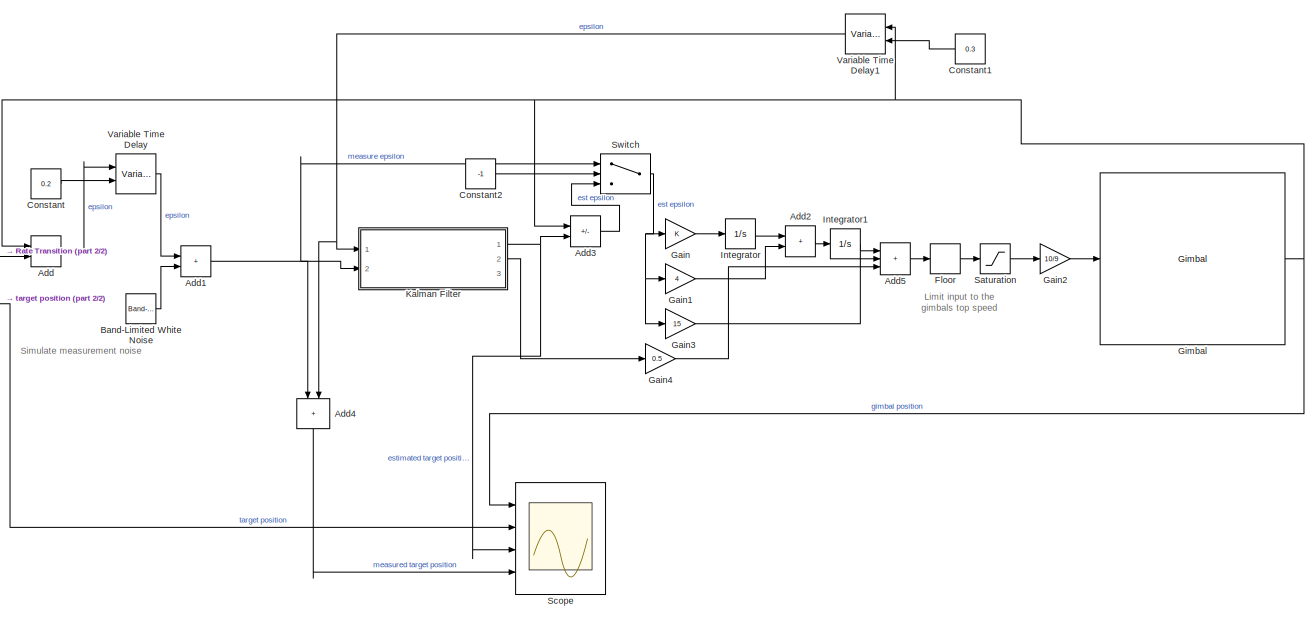
[diagram: root canvas - part 1/2, most of the canvas]
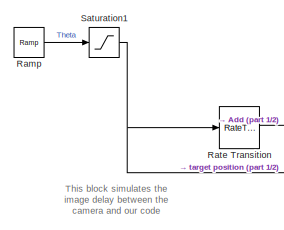
[diagram: root canvas - part 2/2, middle left region]
MODEL slx_51d9d33ee06e
KIND model
CONFIG AbsTol = auto
CONFIG EnableMultiTasking = off
CONFIG FixedStep = 0.00001
CONFIG MaxStep = auto
CONFIG MinStep = auto
CONFIG RelTol = 1e-3
CONFIG SampleTimeConstraint = Unconstrained
CONFIG Solver = FixedStepAuto
CONFIG SolverName = FixedStepAuto
CONFIG StartTime = 0.0
CONFIG StopTime = 6
BLOCK [Sum] Add
  IconShape = rectangular
  Inputs = -+
  Ports = [2, 1]
BLOCK [Sum] Add1
  IconShape = rectangular
  Ports = [2, 1]
BLOCK [Sum] Add2
  IconShape = rectangular
  Ports = [2, 1]
BLOCK [Sum] Add3
  IconShape = rectangular
  Inputs = -+
  Ports = [2, 1]
BLOCK [Sum] Add4
  IconShape = rectangular
  NameLocation = left
  Ports = [2, 1]
BLOCK [Sum] Add5
  IconShape = rectangular
  Inputs = +++
  Ports = [3, 1]
BLOCK [Reference] Band-Limited White Noise  REF=simulink/Sources/Band-Limited
White Noise
  Ports = [0, 1]
  SourceBlock = simulink/Sources/Band-Limited\nWhite Noise
  SourceProductBaseCode = SL
  SourceType = Band-Limited White Noise.
BLOCK [Constant] Constant
  Value = 0.2
BLOCK [Constant] Constant1
  NameLocation = top
  Value = 0.3
BLOCK [Constant] Constant2
  Value = -1
BLOCK [Rounding] Floor
BLOCK [Gain] Gain
BLOCK [Gain] Gain1
  Gain = 4
BLOCK [Gain] Gain2
  Gain = 10/9
BLOCK [Gain] Gain3
  Gain = 15
BLOCK [Gain] Gain4
  Gain = 0.5
BLOCK [Reference] Gimbal  REF=Gimbal_Lib/Gimbal
  Ports = [1, 1]
  SourceBlock = Gimbal_Lib/Gimbal
BLOCK [Integrator] Integrator
  Ports = [1, 1]
BLOCK [Integrator] Integrator1
  Ports = [1, 1]
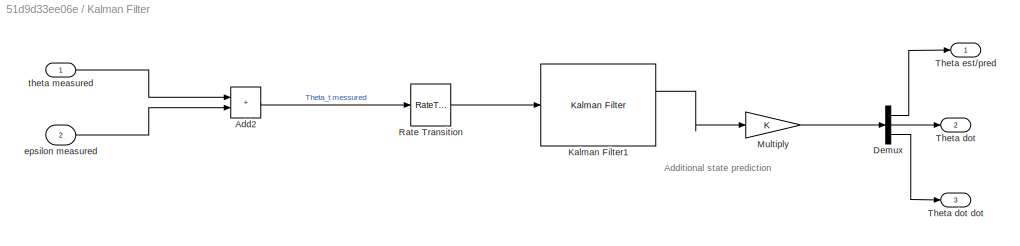
BLOCK [SubSystem] Kalman Filter
  Ports = [2, 3]
  RequestExecContextInheritance = off
BLOCK [Sum] Kalman Filter/Add2
  IconShape = rectangular
  Ports = [2, 1]
BLOCK [Demux] Kalman Filter/Demux
  Outputs = 3
  Ports = [1, 3]
BLOCK [Reference] Kalman Filter/Kalman Filter1  REF=dspadpt3/Kalman Filter
  Ports = [1, 2]
  SourceBlock = dspadpt3/Kalman Filter
  SourceProductBaseCode = DS
  SourceType = Kalman Filter
BLOCK [Gain] Kalman Filter/Multiply
  Multiplication = Matrix(K*u)
BLOCK [RateTransition] Kalman Filter/Rate Transition
  OutPortSampleTime = 1/100
BLOCK [Outport] Kalman Filter/Theta dot
  Port = 2
BLOCK [Outport] Kalman Filter/Theta dot dot
  Port = 3
BLOCK [Outport] Kalman Filter/Theta est//pred
BLOCK [Inport] Kalman Filter/epsilon measured
  Port = 2
BLOCK [Inport] Kalman Filter/theta measured
BLOCK [Reference] Ramp  REF=simulink/Sources/Ramp
  Ports = [0, 1]
  SourceBlock = simulink/Sources/Ramp
  SourceProductBaseCode = SL
  SourceType = Ramp
BLOCK [RateTransition] Rate Transition
  OutPortSampleTime = 1/100
BLOCK [Saturate] Saturation
  LowerLimit = -90
  UpperLimit = 90
BLOCK [Saturate] Saturation1
  LowerLimit = -40
  UpperLimit = 40
BLOCK [Scope] Scope
  Floating = off
  NumInputPorts = 4
  Ports = [4]
  ScopeSpecificationString = Simulink.scopes.TimeScopeBlockCfg('CurrentConfiguration', extmgr.ConfigurationSet(extmgr.Configuration('Core','General UI',true),extmgr.Configuration('Core','Source UI',true),extmgr.Configuration('Sources','WiredSimulink',true),extmgr.Configuration('Visuals','Time Domain',true,'SerializedDisplays',{struct('MinYLimReal','-5.17796','MaxYLimReal','46.60164','YLabelReal','','MinYLimMag','0.00000','Max...<+1458ch>
BLOCK [Switch] Switch
  InputSameDT = off
  SaturateOnIntegerOverflow = off
BLOCK [VariableTransportDelay] Variable Time Delay
  InitialOutput = 3
  MaximumDelay = 10
  Ports = [2, 1]
BLOCK [VariableTransportDelay] Variable Time Delay1
  MaximumDelay = 10
  NameLocation = top
  Ports = [2, 1]
ANNOTATION (root): Limit input to the gimbals top speed
ANNOTATION (root): Simulate measurement noise
ANNOTATION (root): This block simulates the image delay between the camera and our code
ANNOTATION Kalman Filter: Additional state prediction
NET Add1:1 -> Add4:1, Kalman Filter:2, Switch:1
LINE Add2:1 -> Integrator1:1
LINE Add3:1 -> Switch:3
LINE Add4:1 -> Scope:4
LINE Add5:1 -> Floor:1
LINE Add:1 -> Variable Time Delay:1
LINE Band-Limited White Noise:1 -> Add1:2
LINE Constant1:1 -> Variable Time Delay1:2
LINE Constant2:1 -> Switch:2
LINE Constant:1 -> Variable Time Delay:2
LINE Floor:1 -> Saturation:1
LINE Gain1:1 -> Add2:2
LINE Gain2:1 -> Gimbal:1
LINE Gain3:1 -> Add5:2
LINE Gain4:1 -> Add5:3
LINE Gain:1 -> Integrator:1
NET Gimbal:1 -> Add3:1, Add:1, Scope:1, Variable Time Delay1:1
LINE Integrator1:1 -> Add5:1
LINE Integrator:1 -> Add2:1
LINE Kalman Filter/Add2:1 -> Kalman Filter/Rate Transition:1
LINE Kalman Filter/Demux:1 -> Kalman Filter/Theta est//pred:1
LINE Kalman Filter/Demux:2 -> Kalman Filter/Theta dot:1
LINE Kalman Filter/Demux:3 -> Kalman Filter/Theta dot dot:1
LINE Kalman Filter/Kalman Filter1:1 -> Kalman Filter/Multiply:1
LINE Kalman Filter/Multiply:1 -> Kalman Filter/Demux:1
LINE Kalman Filter/Rate Transition:1 -> Kalman Filter/Kalman Filter1:1
LINE Kalman Filter/epsilon measured:1 -> Kalman Filter/Add2:2
LINE Kalman Filter/theta measured:1 -> Kalman Filter/Add2:1
NET Kalman Filter:1 -> Add3:2, Scope:3
LINE Kalman Filter:2 -> Gain4:1
LINE Ramp:1 -> Saturation1:1
LINE Rate Transition:1 -> Add:2
NET Saturation1:1 -> Rate Transition:1, Scope:2
LINE Saturation:1 -> Gain2:1
NET Switch:1 -> Gain1:1, Gain3:1, Gain:1
NET Variable Time Delay1:1 -> Add4:2, Kalman Filter:1
LINE Variable Time Delay:1 -> Add1:1
note: NET lines group one-source signal fan-out (src -> all destinations, sorted); 1:1 wires keep LINE
